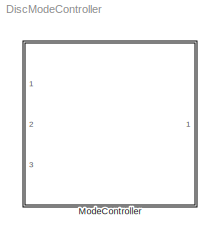
MODEL DiscModeController
KIND model
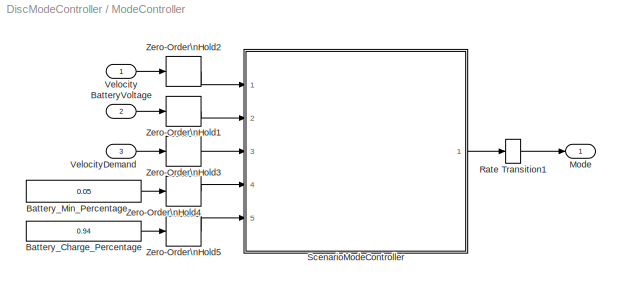
BLOCK [SubSystem] ModeController
  FunctionWithSeparateData = off
  MaskHideContents = off
  MinAlgLoopOccurrences = off
  Opaque = off
  Ports = [3, 1]
  PropExecContextOutsideSubsystem = off
  RTWSystemCode = Auto
  RequestExecContextInheritance = off
  SID = 1
BLOCK [Constant] ModeController/ Battery_Charge_Percentage
  SID = 15
  Value = 0.94
BLOCK [Inport] ModeController/BatteryVoltage
  IconDisplay = Port number
  Port = 2
  SID = 3
BLOCK [Constant] ModeController/Battery_Min_Percentage
  SID = 16
  Value = 0.05
BLOCK [Outport] ModeController/Mode
  IconDisplay = Port number
  SID = 8
BLOCK [RateTransition] ModeController/Rate Transition1
  OutPortSampleTime = 0
  SID = 14
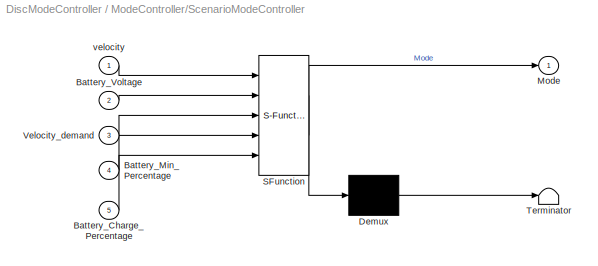
BLOCK [SubSystem] ModeController/ScenarioModeController
  ErrorFcn = Stateflow.Translate.translate
  FunctionWithSeparateData = off
  MaskDescription = Embedded MATLAB block
  MaskDisplay = bgColor = Simulink.Root.ColorString2Rgb(get_param(gcbh, 'BackgroundColor')); image(imread('private/eml_membrane_16.png','png','BackgroundColor',bgColor(1:3)),'center'); disp([10 10 'fcn']);
  MaskHideContents = off
  MaskIconFrame = on
  MaskIconOpaque = off
  MaskIconRotate = none
  MaskIconUnits = normalized
  MaskPortRotate = default
  MaskSelfModifiable = on
  MaskType = Stateflow
  MinAlgLoopOccurrences = off
  Opaque = off
  PermitHierarchicalResolution = ExplicitOnly
  Ports = [5, 1]
  PropExecContextOutsideSubsystem = off
  RTWSystemCode = Auto
  RequestExecContextInheritance = off
  SID = 7
  TreatAsAtomicUnit = on
BLOCK [Demux] ModeController/ScenarioModeController/ Demux 
  Outputs = 1
  Ports = [1, 1]
  SID = 7::275
BLOCK [S-Function] ModeController/ScenarioModeController/ SFunction 
  EnableBusSupport = on
  FunctionName = sf_sfun
  PortCounts = [5 2]
  Ports = [5, 2]
  SID = 7::274
  Tag = Stateflow S-Function DiscModeController 3
BLOCK [Terminator] ModeController/ScenarioModeController/ Terminator 
  SID = 7::277
BLOCK [Inport] ModeController/ScenarioModeController/Battery_Charge_Percentage
  IconDisplay = Port number
  Port = 5
  SID = 7::281
BLOCK [Inport] ModeController/ScenarioModeController/Battery_Min_Percentage
  IconDisplay = Port number
  Port = 4
  SID = 7::280
BLOCK [Inport] ModeController/ScenarioModeController/Battery_Voltage
  IconDisplay = Port number
  Port = 2
  SID = 7::278
BLOCK [Outport] ModeController/ScenarioModeController/Mode
  IconDisplay = Port number
  SID = 7::282
BLOCK [Inport] ModeController/ScenarioModeController/Velocity_demand
  IconDisplay = Port number
  Port = 3
  SID = 7::279
BLOCK [Inport] ModeController/ScenarioModeController/velocity
  IconDisplay = Port number
  SID = 7::273
BLOCK [Inport] ModeController/Velocity
  IconDisplay = Port number
  SID = 2
BLOCK [Inport] ModeController/VelocityDemand
  IconDisplay = Port number
  Port = 3
  SID = 4
BLOCK [ZeroOrderHold] ModeController/Zero-Order\nHold1
  Priority = -1
  SID = 9
  SampleTime = 0.1
BLOCK [ZeroOrderHold] ModeController/Zero-Order\nHold2
  Priority = -1
  SID = 10
  SampleTime = 0.1
BLOCK [ZeroOrderHold] ModeController/Zero-Order\nHold3
  Priority = -1
  SID = 11
  SampleTime = 0.1
BLOCK [ZeroOrderHold] ModeController/Zero-Order\nHold4
  Priority = -1
  SID = 12
  SampleTime = 0.1
BLOCK [ZeroOrderHold] ModeController/Zero-Order\nHold5
  Priority = -1
  SID = 13
  SampleTime = 0.1
LINE ModeController/ Battery_Charge_Percentage:1 -> ModeController/Zero-Order\nHold5:1
LINE ModeController/BatteryVoltage:1 -> ModeController/Zero-Order\nHold1:1
LINE ModeController/Battery_Min_Percentage:1 -> ModeController/Zero-Order\nHold4:1
LINE ModeController/Rate Transition1:1 -> ModeController/Mode:1
LINE ModeController/ScenarioModeController/ Demux :1 -> ModeController/ScenarioModeController/ Terminator :1
LINE ModeController/ScenarioModeController/ SFunction :1 -> ModeController/ScenarioModeController/ Demux :1
LINE ModeController/ScenarioModeController/ SFunction :2 -> ModeController/ScenarioModeController/Mode:1
LINE ModeController/ScenarioModeController/Battery_Charge_Percentage:1 -> ModeController/ScenarioModeController/ SFunction :5
LINE ModeController/ScenarioModeController/Battery_Min_Percentage:1 -> ModeController/ScenarioModeController/ SFunction :4
LINE ModeController/ScenarioModeController/Battery_Voltage:1 -> ModeController/ScenarioModeController/ SFunction :2
LINE ModeController/ScenarioModeController/Velocity_demand:1 -> ModeController/ScenarioModeController/ SFunction :3
LINE ModeController/ScenarioModeController/velocity:1 -> ModeController/ScenarioModeController/ SFunction :1
LINE ModeController/ScenarioModeController:1 -> ModeController/Rate Transition1:1
LINE ModeController/Velocity:1 -> ModeController/Zero-Order\nHold2:1
LINE ModeController/VelocityDemand:1 -> ModeController/Zero-Order\nHold3:1
LINE ModeController/Zero-Order\nHold1:1 -> ModeController/ScenarioModeController:2
LINE ModeController/Zero-Order\nHold2:1 -> ModeController/ScenarioModeController:1
LINE ModeController/Zero-Order\nHold3:1 -> ModeController/ScenarioModeController:3
LINE ModeController/Zero-Order\nHold4:1 -> ModeController/ScenarioModeController:4
LINE ModeController/Zero-Order\nHold5:1 -> ModeController/ScenarioModeController:5
CHART ModeController/ScenarioModeController states=1 transitions=1
  STATE_LABEL 'eML_blk_kernel()'
